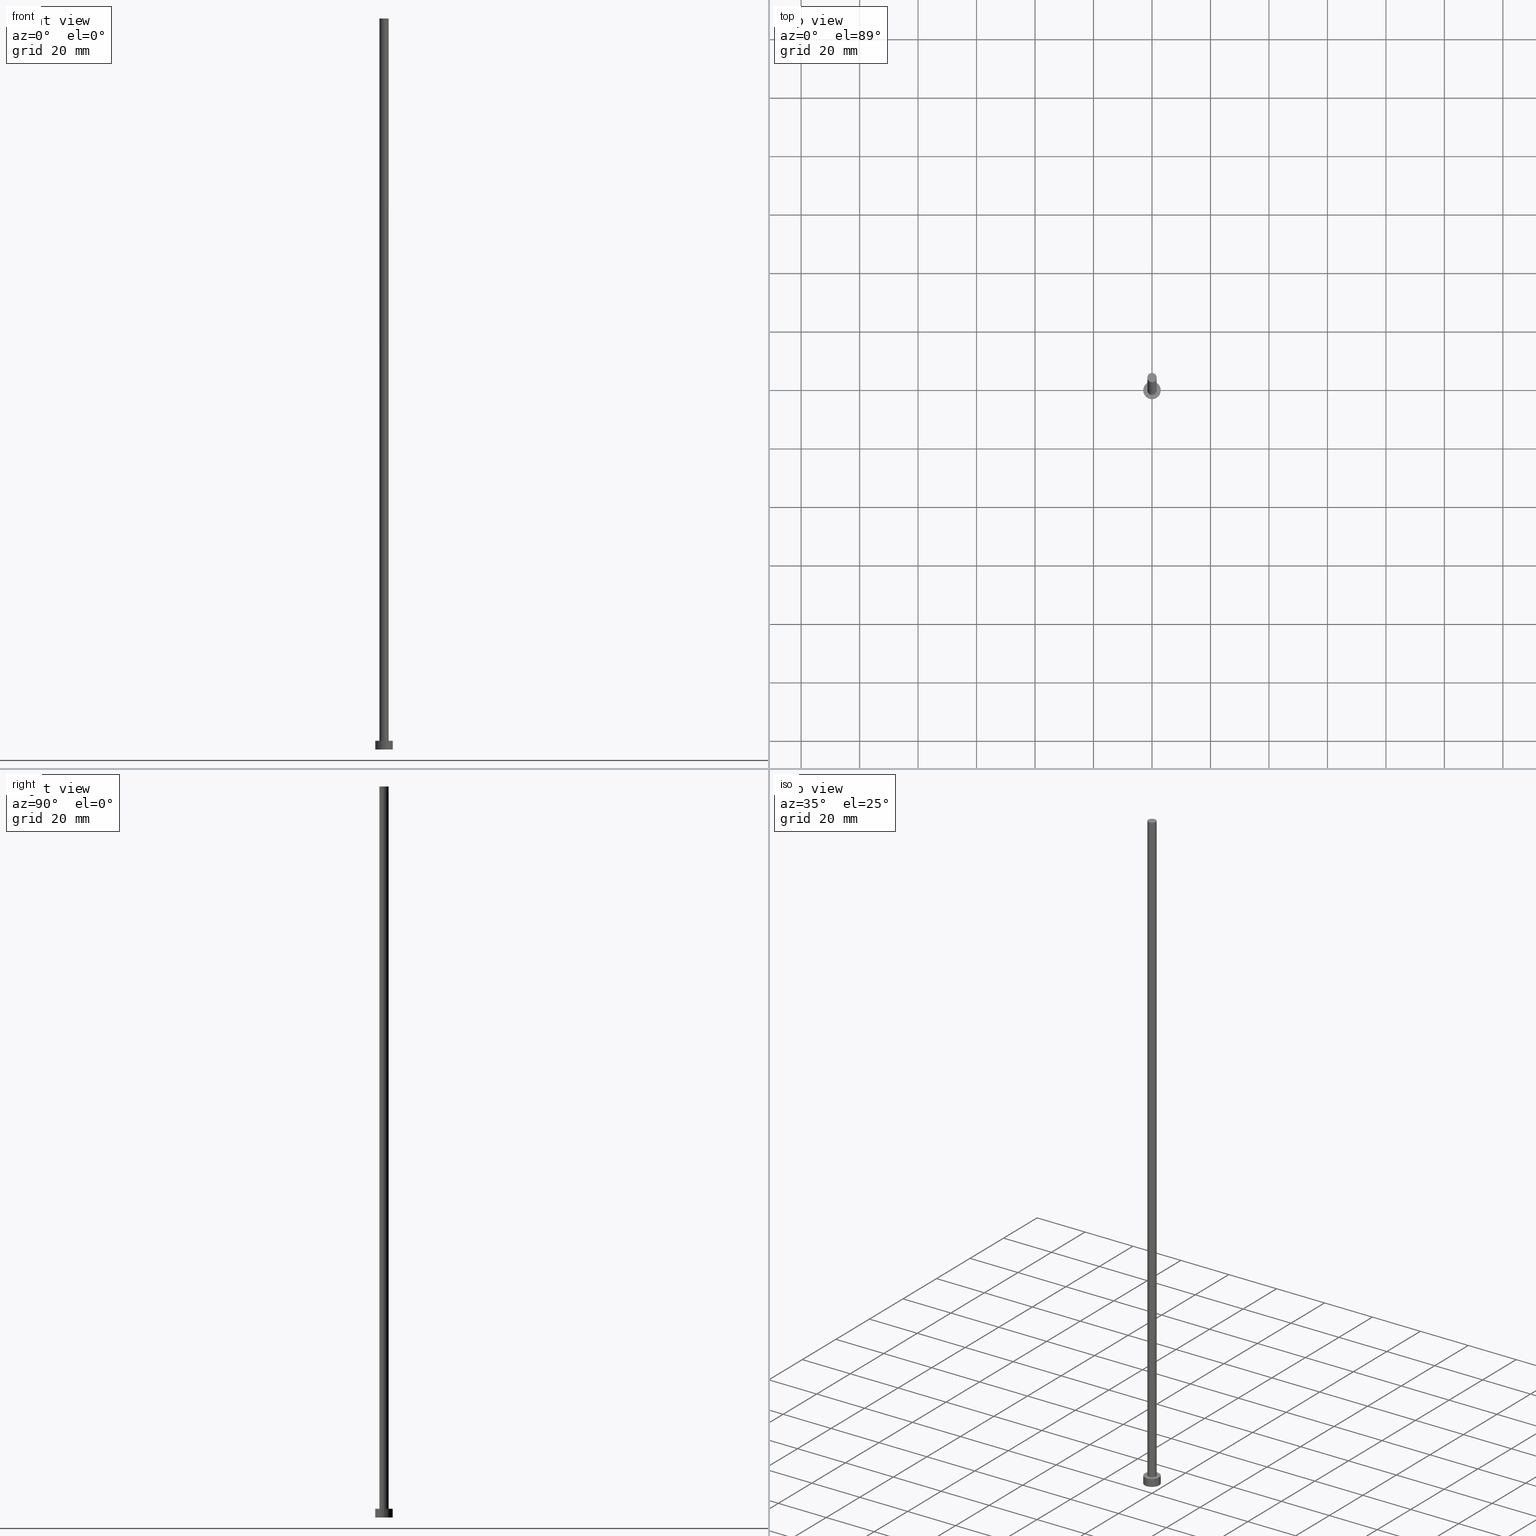
[diagram: canonical four-view strip — front | top / right | iso, engineering-drawing reading convention]
A machine part, canonical four-view strip (front | top / right | iso — engineering-drawing reading convention). The complete STEP part file that produces these views, byte-faithful:
ISO-10303-21;
HEADER;
FILE_DESCRIPTION (( 'STEP AP203' ),
    '1' );
FILE_NAME ('3c04.STEP',
    '2023-02-13T16:25:08',
    ( '' ),
    ( '' ),
    'SwSTEP 2.0',
    'SolidWorks 2019',
    '' );
FILE_SCHEMA (( 'CONFIG_CONTROL_DESIGN' ));
ENDSEC;

DATA;
#1 = CALENDAR_DATE ( 2023, 13, 2 ) ;
#2 = DIRECTION ( 'NONE',  ( 0.000000000000000000, 0.000000000000000000, 1.000000000000000000 ) ) ;
#3 = PERSON_AND_ORGANIZATION ( #34, #7 ) ;
#4 = DIRECTION ( 'NONE',  ( -0.000000000000000000, -0.000000000000000000, -1.000000000000000000 ) ) ;
#5 = COORDINATED_UNIVERSAL_TIME_OFFSET ( 1, 0, .AHEAD. ) ;
#6 = VERTEX_POINT ( 'NONE', #225 ) ;
#7 = ORGANIZATION ( 'NEUR�EN�', 'NEUR�EN�', '' ) ;
#8 = LINE ( 'NONE', #23, #183 ) ;
#9 = CYLINDRICAL_SURFACE ( 'NONE', #174, 1.600000000000000089 ) ;
#10 = DIRECTION ( 'NONE',  ( -0.000000000000000000, -0.000000000000000000, -1.000000000000000000 ) ) ;
#11 = DIRECTION ( 'NONE',  ( 1.000000000000000000, 0.000000000000000000, 0.000000000000000000 ) ) ;
#12 = ORIENTED_EDGE ( 'NONE', *, *, #154, .F. ) ;
#13 = ORIENTED_EDGE ( 'NONE', *, *, #61, .T. ) ;
#14 = DATE_TIME_ROLE ( 'classification_date' ) ;
#15 =( GEOMETRIC_REPRESENTATION_CONTEXT ( 3 ) GLOBAL_UNCERTAINTY_ASSIGNED_CONTEXT ( ( #135 ) ) GLOBAL_UNIT_ASSIGNED_CONTEXT ( ( #218, #156, #57 ) ) REPRESENTATION_CONTEXT ( 'NONE', 'WORKASPACE' ) );
#16 = DIRECTION ( 'NONE',  ( 0.000000000000000000, 0.000000000000000000, 1.000000000000000000 ) ) ;
#17 = DIRECTION ( 'NONE',  ( 0.000000000000000000, 0.000000000000000000, 1.000000000000000000 ) ) ;
#18 = ADVANCED_FACE ( 'NONE', ( #199 ), #36, .T. ) ;
#19 = APPLICATION_PROTOCOL_DEFINITION ( 'international standard', 'config_control_design', 1994, #229 ) ;
#20 = DIRECTION ( 'NONE',  ( 0.000000000000000000, 0.000000000000000000, 1.000000000000000000 ) ) ;
#21 = PERSON_AND_ORGANIZATION ( #34, #7 ) ;
#22 = AXIS2_PLACEMENT_3D ( 'NONE', #155, #92, #94 ) ;
#23 = CARTESIAN_POINT ( 'NONE',  ( -1.600000000000000089, 0.000000000000000000, 250.0000000000000000 ) ) ;
#24 = CC_DESIGN_APPROVAL ( #78, ( #219 ) ) ;
#25 = CALENDAR_DATE ( 2023, 13, 2 ) ;
#26 = EDGE_CURVE ( 'NONE', #238, #99, #54, .T. ) ;
#27 = FACE_OUTER_BOUND ( 'NONE', #124, .T. ) ;
#28 = DIRECTION ( 'NONE',  ( 0.000000000000000000, 0.000000000000000000, 1.000000000000000000 ) ) ;
#29 = EDGE_CURVE ( 'NONE', #172, #160, #196, .T. ) ;
#30 = DIRECTION ( 'NONE',  ( 1.000000000000000000, 0.000000000000000000, 0.000000000000000000 ) ) ;
#31 = CIRCLE ( 'NONE', #246, 3.000000000000000444 ) ;
#32 = LINE ( 'NONE', #98, #91 ) ;
#33 = CARTESIAN_POINT ( 'NONE',  ( 0.000000000000000000, 0.000000000000000000, 3.000000000000000000 ) ) ;
#34 = PERSON ( 'NEUR�EN�', 'NEUR�EN�', 'NEUR�EN�', ('NEUR�EN�'), ('NEUR�EN�'), ('NEUR�EN�') ) ;
#35 = APPROVAL_DATE_TIME ( #206, #44 ) ;
#36 = PLANE ( 'NONE',  #115 ) ;
#37 = CC_DESIGN_PERSON_AND_ORGANIZATION_ASSIGNMENT ( #240, #163, ( #73 ) ) ;
#38 = AXIS2_PLACEMENT_3D ( 'NONE', #86, #17, #207 ) ;
#39 = APPROVAL_STATUS ( 'not_yet_approved' ) ;
#40 = ORIENTED_EDGE ( 'NONE', *, *, #61, .F. ) ;
#41 = LOCAL_TIME ( 17, 25, 8.000000000000000000, #150 ) ;
#42 = APPROVAL ( #176, 'NEUR�EN�' ) ;
#43 = APPROVAL_DATE_TIME ( #121, #78 ) ;
#44 = APPROVAL ( #46, 'NEUR�EN�' ) ;
#45 = CARTESIAN_POINT ( 'NONE',  ( 0.000000000000000000, 0.000000000000000000, 250.0000000000000000 ) ) ;
#46 = APPROVAL_STATUS ( 'not_yet_approved' ) ;
#47 = ORIENTED_EDGE ( 'NONE', *, *, #154, .T. ) ;
#48 = DIRECTION ( 'NONE',  ( 1.000000000000000000, 0.000000000000000000, 0.000000000000000000 ) ) ;
#49 = CARTESIAN_POINT ( 'NONE',  ( 0.000000000000000000, 0.000000000000000000, 250.0000000000000000 ) ) ;
#50 = FACE_OUTER_BOUND ( 'NONE', #149, .T. ) ;
#51 = MANIFOLD_SOLID_BREP ( 'P�idat vysunut�m3', #217 ) ;
#52 = CARTESIAN_POINT ( 'NONE',  ( 0.000000000000000000, 0.000000000000000000, 250.0000000000000000 ) ) ;
#53 = EDGE_CURVE ( 'NONE', #238, #162, #126, .T. ) ;
#54 = CIRCLE ( 'NONE', #161, 1.600000000000000089 ) ;
#55 = APPROVAL_PERSON_ORGANIZATION ( #125, #78, #201 ) ;
#56 = FACE_OUTER_BOUND ( 'NONE', #190, .T. ) ;
#57 =( NAMED_UNIT ( * ) SI_UNIT ( $, .STERADIAN. ) SOLID_ANGLE_UNIT ( ) );
#58 = LOCAL_TIME ( 17, 25, 8.000000000000000000, #5 ) ;
#59 = CC_DESIGN_PERSON_AND_ORGANIZATION_ASSIGNMENT ( #120, #60, ( #198 ) ) ;
#60 = PERSON_AND_ORGANIZATION_ROLE ( 'classification_officer' ) ;
#61 = EDGE_CURVE ( 'NONE', #99, #6, #8, .T. ) ;
#62 = EDGE_CURVE ( 'NONE', #160, #172, #151, .T. ) ;
#63 = MECHANICAL_CONTEXT ( 'NONE', #209, 'mechanical' ) ;
#64 = PERSON_AND_ORGANIZATION ( #34, #7 ) ;
#65 = EDGE_LOOP ( 'NONE', ( #244, #90 ) ) ;
#66 = CC_DESIGN_PERSON_AND_ORGANIZATION_ASSIGNMENT ( #67, #123, ( #219 ) ) ;
#67 = PERSON_AND_ORGANIZATION ( #34, #7 ) ;
#68 = AXIS2_PLACEMENT_3D ( 'NONE', #167, #28, #114 ) ;
#69 = DIRECTION ( 'NONE',  ( 1.000000000000000000, 0.000000000000000000, 0.000000000000000000 ) ) ;
#70 = ADVANCED_BREP_SHAPE_REPRESENTATION ( '3c04', ( #51, #184 ), #15 ) ;
#71 = CARTESIAN_POINT ( 'NONE',  ( 0.000000000000000000, 0.000000000000000000, 3.000000000000000000 ) ) ;
#72 = FACE_OUTER_BOUND ( 'NONE', #191, .T. ) ;
#73 = PRODUCT ( '3c04', '3c04', '', ( #63 ) ) ;
#74 = EDGE_CURVE ( 'NONE', #241, #104, #31, .T. ) ;
#75 = DIRECTION ( 'NONE',  ( 0.000000000000000000, 0.000000000000000000, 1.000000000000000000 ) ) ;
#76 = CARTESIAN_POINT ( 'NONE',  ( 0.000000000000000000, 0.000000000000000000, 250.0000000000000000 ) ) ;
#77 = EDGE_CURVE ( 'NONE', #99, #238, #139, .T. ) ;
#78 = APPROVAL ( #39, 'NEUR�EN�' ) ;
#79 = DIRECTION ( 'NONE',  ( -0.000000000000000000, -0.000000000000000000, -1.000000000000000000 ) ) ;
#80 = ORIENTED_EDGE ( 'NONE', *, *, #211, .T. ) ;
#81 = APPLICATION_PROTOCOL_DEFINITION ( 'international standard', 'config_control_design', 1994, #209 ) ;
#82 = COORDINATED_UNIVERSAL_TIME_OFFSET ( 1, 0, .AHEAD. ) ;
#83 = PERSON_AND_ORGANIZATION_ROLE ( 'creator' ) ;
#84 = CARTESIAN_POINT ( 'NONE',  ( 0.000000000000000000, 0.000000000000000000, 3.000000000000000000 ) ) ;
#85 = PERSON_AND_ORGANIZATION_ROLE ( 'creator' ) ;
#86 = CARTESIAN_POINT ( 'NONE',  ( 0.000000000000000000, 0.000000000000000000, 3.000000000000000000 ) ) ;
#87 = LOCAL_TIME ( 17, 25, 8.000000000000000000, #222 ) ;
#88 = DIRECTION ( 'NONE',  ( 1.000000000000000000, 0.000000000000000000, 0.000000000000000000 ) ) ;
#89 = ORIENTED_EDGE ( 'NONE', *, *, #77, .T. ) ;
#90 = ORIENTED_EDGE ( 'NONE', *, *, #97, .F. ) ;
#91 = VECTOR ( 'NONE', #138, 1000.000000000000000 ) ;
#92 = DIRECTION ( 'NONE',  ( 0.000000000000000000, 0.000000000000000000, 1.000000000000000000 ) ) ;
#93 = FACE_OUTER_BOUND ( 'NONE', #164, .T. ) ;
#94 = DIRECTION ( 'NONE',  ( 1.000000000000000000, 0.000000000000000000, 0.000000000000000000 ) ) ;
#95 = CC_DESIGN_SECURITY_CLASSIFICATION ( #198, ( #219 ) ) ;
#96 = CARTESIAN_POINT ( 'NONE',  ( 0.000000000000000000, 0.000000000000000000, 0.000000000000000000 ) ) ;
#97 = EDGE_CURVE ( 'NONE', #162, #6, #223, .T. ) ;
#98 = CARTESIAN_POINT ( 'NONE',  ( 3.000000000000000444, 3.673940397442060361E-16, 3.000000000000000000 ) ) ;
#99 = VERTEX_POINT ( 'NONE', #213 ) ;
#100 = CIRCLE ( 'NONE', #180, 3.000000000000000444 ) ;
#101 = ORIENTED_EDGE ( 'NONE', *, *, #53, .T. ) ;
#102 = PRODUCT_DEFINITION ( 'NEZN�M�', '', #219, #203 ) ;
#103 = SECURITY_CLASSIFICATION_LEVEL ( 'unclassified' ) ;
#104 = VERTEX_POINT ( 'NONE', #129 ) ;
#105 = CALENDAR_DATE ( 2023, 13, 2 ) ;
#106 = APPROVAL_ROLE ( '' ) ;
#107 = AXIS2_PLACEMENT_3D ( 'NONE', #84, #210, #11 ) ;
#108 = DIRECTION ( 'NONE',  ( -0.000000000000000000, -0.000000000000000000, -1.000000000000000000 ) ) ;
#109 = LOCAL_TIME ( 17, 25, 8.000000000000000000, #82 ) ;
#110 = ORIENTED_EDGE ( 'NONE', *, *, #74, .F. ) ;
#111 = CARTESIAN_POINT ( 'NONE',  ( 0.000000000000000000, 0.000000000000000000, 0.000000000000000000 ) ) ;
#112 = AXIS2_PLACEMENT_3D ( 'NONE', #49, #188, #233 ) ;
#113 = CARTESIAN_POINT ( 'NONE',  ( -3.000000000000000444, 0.000000000000000000, 3.000000000000000000 ) ) ;
#114 = DIRECTION ( 'NONE',  ( 1.000000000000000000, 0.000000000000000000, -0.000000000000000000 ) ) ;
#115 = AXIS2_PLACEMENT_3D ( 'NONE', #45, #20, #128 ) ;
#116 = AXIS2_PLACEMENT_3D ( 'NONE', #71, #75, #48 ) ;
#117 = ORIENTED_EDGE ( 'NONE', *, *, #74, .T. ) ;
#118 = VECTOR ( 'NONE', #4, 1000.000000000000000 ) ;
#119 = LOCAL_TIME ( 17, 25, 8.000000000000000000, #145 ) ;
#120 = PERSON_AND_ORGANIZATION ( #34, #7 ) ;
#121 = DATE_AND_TIME ( #25, #109 ) ;
#122 = ORIENTED_EDGE ( 'NONE', *, *, #62, .T. ) ;
#123 = PERSON_AND_ORGANIZATION_ROLE ( 'design_supplier' ) ;
#124 = EDGE_LOOP ( 'NONE', ( #122, #194 ) ) ;
#125 = PERSON_AND_ORGANIZATION ( #34, #7 ) ;
#126 = LINE ( 'NONE', #179, #118 ) ;
#127 = APPROVAL_ROLE ( '' ) ;
#128 = DIRECTION ( 'NONE',  ( 1.000000000000000000, 0.000000000000000000, -0.000000000000000000 ) ) ;
#129 = CARTESIAN_POINT ( 'NONE',  ( -3.000000000000000444, 0.000000000000000000, 0.000000000000000000 ) ) ;
#130 = CARTESIAN_POINT ( 'NONE',  ( 0.000000000000000000, 0.000000000000000000, 3.000000000000000000 ) ) ;
#131 = PLANE ( 'NONE',  #68 ) ;
#132 = AXIS2_PLACEMENT_3D ( 'NONE', #33, #79, #136 ) ;
#133 = FACE_BOUND ( 'NONE', #65, .T. ) ;
#134 = CARTESIAN_POINT ( 'NONE',  ( 3.000000000000000444, 3.673940397442060361E-16, 3.000000000000000000 ) ) ;
#135 = UNCERTAINTY_MEASURE_WITH_UNIT (LENGTH_MEASURE( 1.000000000000000082E-05 ), #218, 'distance_accuracy_value', 'NONE');
#136 = DIRECTION ( 'NONE',  ( -1.000000000000000000, 0.000000000000000000, 0.000000000000000000 ) ) ;
#137 = ORIENTED_EDGE ( 'NONE', *, *, #77, .F. ) ;
#138 = DIRECTION ( 'NONE',  ( -0.000000000000000000, -0.000000000000000000, -1.000000000000000000 ) ) ;
#139 = CIRCLE ( 'NONE', #254, 1.600000000000000089 ) ;
#140 = ADVANCED_FACE ( 'NONE', ( #72 ), #9, .T. ) ;
#141 = ADVANCED_FACE ( 'NONE', ( #93 ), #166, .T. ) ;
#142 = CC_DESIGN_DATE_AND_TIME_ASSIGNMENT ( #255, #148, ( #102 ) ) ;
#143 = ORIENTED_EDGE ( 'NONE', *, *, #53, .F. ) ;
#144 = ORIENTED_EDGE ( 'NONE', *, *, #211, .F. ) ;
#145 = COORDINATED_UNIVERSAL_TIME_OFFSET ( 1, 0, .AHEAD. ) ;
#146 = EDGE_LOOP ( 'NONE', ( #157, #110 ) ) ;
#147 = ADVANCED_FACE ( 'NONE', ( #237 ), #131, .F. ) ;
#148 = DATE_TIME_ROLE ( 'creation_date' ) ;
#149 = EDGE_LOOP ( 'NONE', ( #253, #80, #117, #12 ) ) ;
#150 = COORDINATED_UNIVERSAL_TIME_OFFSET ( 1, 0, .AHEAD. ) ;
#151 = CIRCLE ( 'NONE', #107, 3.000000000000000444 ) ;
#152 = SHAPE_DEFINITION_REPRESENTATION ( #239, #70 ) ;
#153 = CYLINDRICAL_SURFACE ( 'NONE', #242, 3.000000000000000444 ) ;
#154 = EDGE_CURVE ( 'NONE', #160, #104, #245, .T. ) ;
#155 = CARTESIAN_POINT ( 'NONE',  ( 0.000000000000000000, 0.000000000000000000, 3.000000000000000000 ) ) ;
#156 =( NAMED_UNIT ( * ) PLANE_ANGLE_UNIT ( ) SI_UNIT ( $, .RADIAN. ) );
#157 = ORIENTED_EDGE ( 'NONE', *, *, #185, .F. ) ;
#158 = AXIS2_PLACEMENT_3D ( 'NONE', #168, #208, #221 ) ;
#159 = DATE_AND_TIME ( #1, #58 ) ;
#160 = VERTEX_POINT ( 'NONE', #113 ) ;
#161 = AXIS2_PLACEMENT_3D ( 'NONE', #197, #2, #202 ) ;
#162 = VERTEX_POINT ( 'NONE', #187 ) ;
#163 = PERSON_AND_ORGANIZATION_ROLE ( 'design_owner' ) ;
#164 = EDGE_LOOP ( 'NONE', ( #230, #101, #251, #40 ) ) ;
#165 = CARTESIAN_POINT ( 'NONE',  ( -3.000000000000000444, 0.000000000000000000, 3.000000000000000000 ) ) ;
#166 = CYLINDRICAL_SURFACE ( 'NONE', #112, 1.600000000000000089 ) ;
#167 = CARTESIAN_POINT ( 'NONE',  ( 0.000000000000000000, 0.000000000000000000, 0.000000000000000000 ) ) ;
#168 = CARTESIAN_POINT ( 'NONE',  ( 0.000000000000000000, 0.000000000000000000, 3.000000000000000000 ) ) ;
#169 = APPROVAL_PERSON_ORGANIZATION ( #200, #42, #106 ) ;
#170 = DIRECTION ( 'NONE',  ( 0.000000000000000000, 0.000000000000000000, 1.000000000000000000 ) ) ;
#171 = CARTESIAN_POINT ( 'NONE',  ( 3.000000000000000444, 3.673940397442060361E-16, 0.000000000000000000 ) ) ;
#172 = VERTEX_POINT ( 'NONE', #134 ) ;
#173 = CALENDAR_DATE ( 2023, 13, 2 ) ;
#174 = AXIS2_PLACEMENT_3D ( 'NONE', #52, #10, #247 ) ;
#175 = EDGE_CURVE ( 'NONE', #6, #162, #250, .T. ) ;
#176 = APPROVAL_STATUS ( 'not_yet_approved' ) ;
#177 = PRODUCT_RELATED_PRODUCT_CATEGORY ( 'detail', '', ( #73 ) ) ;
#178 = ORIENTED_EDGE ( 'NONE', *, *, #62, .F. ) ;
#179 = CARTESIAN_POINT ( 'NONE',  ( 1.600000000000000089, 1.959434878635765230E-16, 250.0000000000000000 ) ) ;
#180 = AXIS2_PLACEMENT_3D ( 'NONE', #96, #216, #69 ) ;
#181 = ORIENTED_EDGE ( 'NONE', *, *, #26, .T. ) ;
#182 = DIRECTION ( 'NONE',  ( -0.000000000000000000, -0.000000000000000000, -1.000000000000000000 ) ) ;
#183 = VECTOR ( 'NONE', #108, 1000.000000000000000 ) ;
#184 = AXIS2_PLACEMENT_3D ( 'NONE', #226, #16, #88 ) ;
#185 = EDGE_CURVE ( 'NONE', #104, #241, #100, .T. ) ;
#186 = DIRECTION ( 'NONE',  ( 0.000000000000000000, 0.000000000000000000, 1.000000000000000000 ) ) ;
#187 = CARTESIAN_POINT ( 'NONE',  ( 1.600000000000000089, 1.959434878635765230E-16, 3.000000000000000000 ) ) ;
#188 = DIRECTION ( 'NONE',  ( -0.000000000000000000, -0.000000000000000000, -1.000000000000000000 ) ) ;
#189 = CARTESIAN_POINT ( 'NONE',  ( 1.600000000000000089, 1.959434878635765230E-16, 250.0000000000000000 ) ) ;
#190 = EDGE_LOOP ( 'NONE', ( #144, #178, #47, #243 ) ) ;
#191 = EDGE_LOOP ( 'NONE', ( #143, #137, #13, #227 ) ) ;
#192 = APPROVAL_PERSON_ORGANIZATION ( #3, #44, #127 ) ;
#193 = ADVANCED_FACE ( 'NONE', ( #50 ), #153, .T. ) ;
#194 = ORIENTED_EDGE ( 'NONE', *, *, #29, .T. ) ;
#195 = DATE_AND_TIME ( #105, #41 ) ;
#196 = CIRCLE ( 'NONE', #38, 3.000000000000000444 ) ;
#197 = CARTESIAN_POINT ( 'NONE',  ( 0.000000000000000000, 0.000000000000000000, 250.0000000000000000 ) ) ;
#198 = SECURITY_CLASSIFICATION ( '', '', #103 ) ;
#199 = FACE_OUTER_BOUND ( 'NONE', #224, .T. ) ;
#200 = PERSON_AND_ORGANIZATION ( #34, #7 ) ;
#201 = APPROVAL_ROLE ( '' ) ;
#202 = DIRECTION ( 'NONE',  ( 1.000000000000000000, 0.000000000000000000, 0.000000000000000000 ) ) ;
#203 = DESIGN_CONTEXT ( 'detailed design', #229, 'design' ) ;
#204 = ADVANCED_FACE ( 'NONE', ( #133, #27 ), #215, .T. ) ;
#205 = CC_DESIGN_APPROVAL ( #42, ( #198 ) ) ;
#206 = DATE_AND_TIME ( #173, #87 ) ;
#207 = DIRECTION ( 'NONE',  ( 1.000000000000000000, 0.000000000000000000, 0.000000000000000000 ) ) ;
#208 = DIRECTION ( 'NONE',  ( 0.000000000000000000, 0.000000000000000000, 1.000000000000000000 ) ) ;
#209 = APPLICATION_CONTEXT ( 'configuration controlled 3d designs of mechanical parts and assemblies' ) ;
#210 = DIRECTION ( 'NONE',  ( 0.000000000000000000, 0.000000000000000000, 1.000000000000000000 ) ) ;
#211 = EDGE_CURVE ( 'NONE', #172, #241, #32, .T. ) ;
#212 = APPROVAL_DATE_TIME ( #159, #42 ) ;
#213 = CARTESIAN_POINT ( 'NONE',  ( -1.600000000000000089, 0.000000000000000000, 250.0000000000000000 ) ) ;
#214 = VECTOR ( 'NONE', #182, 1000.000000000000000 ) ;
#215 = PLANE ( 'NONE',  #158 ) ;
#216 = DIRECTION ( 'NONE',  ( 0.000000000000000000, 0.000000000000000000, 1.000000000000000000 ) ) ;
#217 = CLOSED_SHELL ( 'NONE', ( #141, #193, #249, #204, #147, #140, #18 ) ) ;
#218 =( LENGTH_UNIT ( ) NAMED_UNIT ( * ) SI_UNIT ( .MILLI., .METRE. ) );
#219 = PRODUCT_DEFINITION_FORMATION_WITH_SPECIFIED_SOURCE ( 'LIBOVOLN�', '', #73, .NOT_KNOWN. ) ;
#220 = CC_DESIGN_PERSON_AND_ORGANIZATION_ASSIGNMENT ( #21, #85, ( #219 ) ) ;
#221 = DIRECTION ( 'NONE',  ( 1.000000000000000000, 0.000000000000000000, -0.000000000000000000 ) ) ;
#222 = COORDINATED_UNIVERSAL_TIME_OFFSET ( 1, 0, .AHEAD. ) ;
#223 = CIRCLE ( 'NONE', #22, 1.600000000000000089 ) ;
#224 = EDGE_LOOP ( 'NONE', ( #89, #181 ) ) ;
#225 = CARTESIAN_POINT ( 'NONE',  ( -1.600000000000000089, 0.000000000000000000, 3.000000000000000000 ) ) ;
#226 = CARTESIAN_POINT ( 'NONE',  ( 0.000000000000000000, 0.000000000000000000, 0.000000000000000000 ) ) ;
#227 = ORIENTED_EDGE ( 'NONE', *, *, #175, .T. ) ;
#228 = CALENDAR_DATE ( 2023, 13, 2 ) ;
#229 = APPLICATION_CONTEXT ( 'configuration controlled 3d designs of mechanical parts and assemblies' ) ;
#230 = ORIENTED_EDGE ( 'NONE', *, *, #26, .F. ) ;
#231 = CC_DESIGN_DATE_AND_TIME_ASSIGNMENT ( #195, #14, ( #198 ) ) ;
#232 = DIRECTION ( 'NONE',  ( -1.000000000000000000, 0.000000000000000000, 0.000000000000000000 ) ) ;
#233 = DIRECTION ( 'NONE',  ( -1.000000000000000000, 0.000000000000000000, 0.000000000000000000 ) ) ;
#234 = DIRECTION ( 'NONE',  ( 1.000000000000000000, 0.000000000000000000, 0.000000000000000000 ) ) ;
#235 = DIRECTION ( 'NONE',  ( -0.000000000000000000, -0.000000000000000000, -1.000000000000000000 ) ) ;
#236 = CC_DESIGN_APPROVAL ( #44, ( #102 ) ) ;
#237 = FACE_OUTER_BOUND ( 'NONE', #146, .T. ) ;
#238 = VERTEX_POINT ( 'NONE', #189 ) ;
#239 = PRODUCT_DEFINITION_SHAPE ( 'NONE', 'NONE',  #102 ) ;
#240 = PERSON_AND_ORGANIZATION ( #34, #7 ) ;
#241 = VERTEX_POINT ( 'NONE', #171 ) ;
#242 = AXIS2_PLACEMENT_3D ( 'NONE', #130, #235, #232 ) ;
#243 = ORIENTED_EDGE ( 'NONE', *, *, #185, .T. ) ;
#244 = ORIENTED_EDGE ( 'NONE', *, *, #175, .F. ) ;
#245 = LINE ( 'NONE', #165, #214 ) ;
#246 = AXIS2_PLACEMENT_3D ( 'NONE', #111, #170, #30 ) ;
#247 = DIRECTION ( 'NONE',  ( -1.000000000000000000, 0.000000000000000000, 0.000000000000000000 ) ) ;
#248 = CYLINDRICAL_SURFACE ( 'NONE', #132, 3.000000000000000444 ) ;
#249 = ADVANCED_FACE ( 'NONE', ( #56 ), #248, .T. ) ;
#250 = CIRCLE ( 'NONE', #116, 1.600000000000000089 ) ;
#251 = ORIENTED_EDGE ( 'NONE', *, *, #97, .T. ) ;
#252 = CC_DESIGN_PERSON_AND_ORGANIZATION_ASSIGNMENT ( #64, #83, ( #102 ) ) ;
#253 = ORIENTED_EDGE ( 'NONE', *, *, #29, .F. ) ;
#254 = AXIS2_PLACEMENT_3D ( 'NONE', #76, #186, #234 ) ;
#255 = DATE_AND_TIME ( #228, #119 ) ;
ENDSEC;
END-ISO-10303-21;
